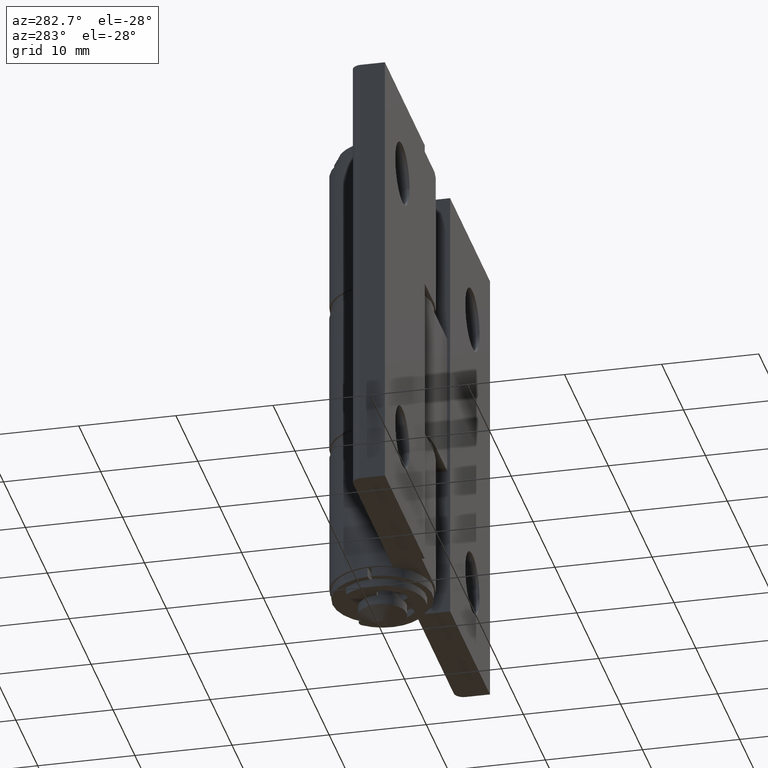
[diagram: clean part render]
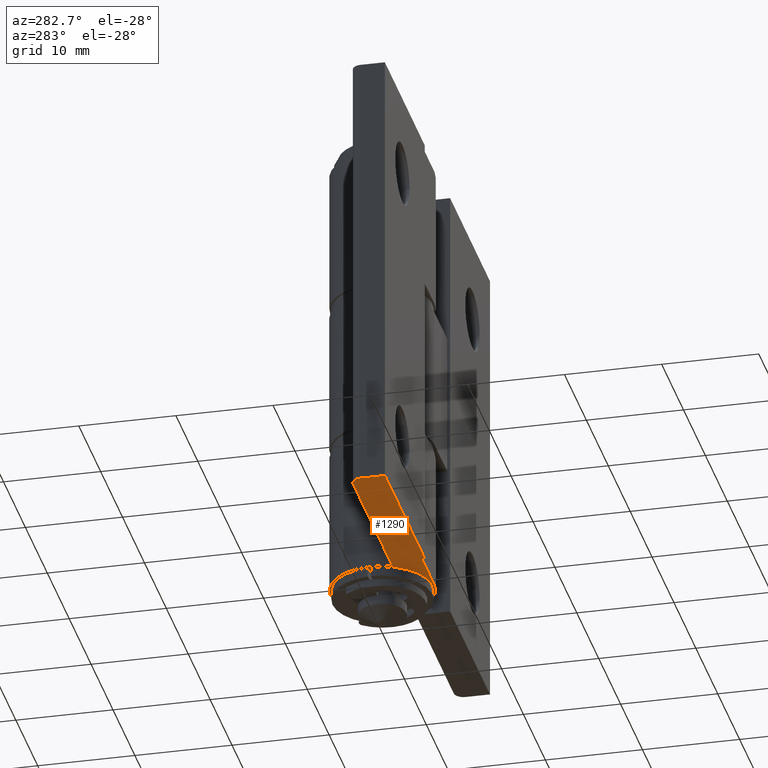
[diagram: same view with one face highlighted and labeled with its STEP entity id]
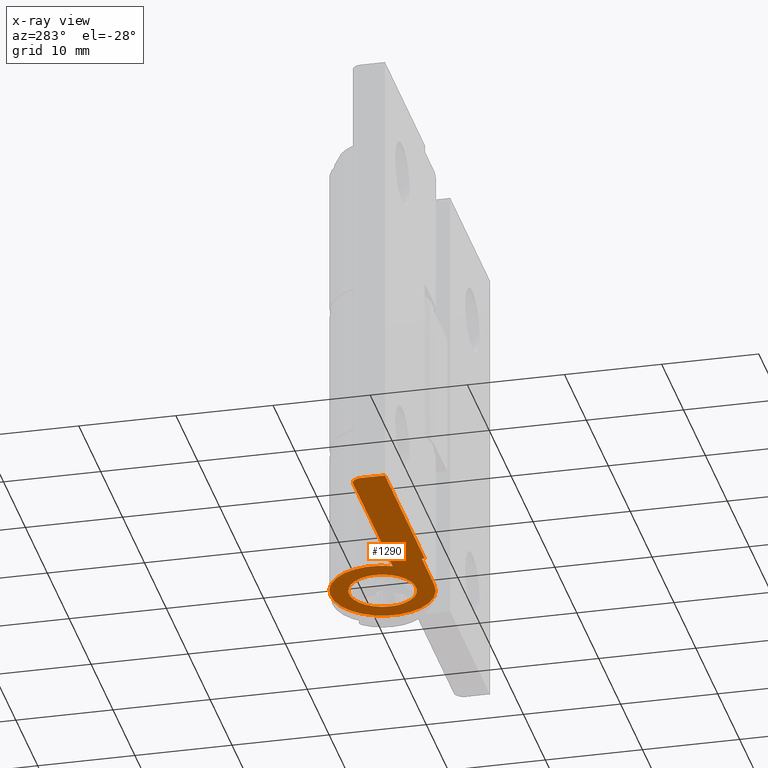
[diagram: x-ray of the same camera — body ghosted, the highlighted face saturated]
A machine part, auxiliary view. The second image highlights one B-rep face of the part: STEP entity #1290.
The next image is the same camera in x-ray: the body ghosted, the highlighted face saturated — about 0% of this face is hidden behind the body in this view.
In plain terms, the highlighted planar face has unit normal (0, 0, -1).
Its self-contained STEP definition (entity closure, byte-faithful):
#127=FACE_BOUND('',#266,.T.);
#172=FACE_OUTER_BOUND('',#265,.T.);
#265=EDGE_LOOP('',(#978,#979,#980,#981,#982,#983,#984));
#266=EDGE_LOOP('',(#985));
#360=CIRCLE('',#1369,5.35);
#362=CIRCLE('',#1374,1.);
#369=CIRCLE('',#1387,3.45);
#436=LINE('',#1988,#528);
#442=LINE('',#2005,#534);
#448=LINE('',#2042,#540);
#450=LINE('',#2046,#542);
#453=LINE('',#2050,#545);
#528=VECTOR('',#1552,18.1010205144336);
#534=VECTOR('',#1568,5.8);
#540=VECTOR('',#1610,2.5);
#542=VECTOR('',#1614,18.2);
#545=VECTOR('',#1619,0.3);
#622=VERTEX_POINT('',#1985);
#623=VERTEX_POINT('',#1987);
#628=VERTEX_POINT('',#1999);
#629=VERTEX_POINT('',#2003);
#631=VERTEX_POINT('',#2010);
#641=VERTEX_POINT('',#2038);
#642=VERTEX_POINT('',#2041);
#643=VERTEX_POINT('',#2045);
#746=EDGE_CURVE('',#623,#622,#436,.T.);
#753=EDGE_CURVE('',#622,#628,#360,.T.);
#755=EDGE_CURVE('',#628,#629,#442,.T.);
#757=EDGE_CURVE('',#623,#631,#362,.T.);
#769=EDGE_CURVE('',#641,#641,#369,.T.);
#770=EDGE_CURVE('',#642,#631,#448,.T.);
#772=EDGE_CURVE('',#643,#642,#450,.T.);
#775=EDGE_CURVE('',#629,#643,#453,.T.);
#978=ORIENTED_EDGE('',*,*,#757,.F.);
#979=ORIENTED_EDGE('',*,*,#746,.T.);
#980=ORIENTED_EDGE('',*,*,#753,.T.);
#981=ORIENTED_EDGE('',*,*,#755,.T.);
#982=ORIENTED_EDGE('',*,*,#775,.T.);
#983=ORIENTED_EDGE('',*,*,#772,.T.);
#984=ORIENTED_EDGE('',*,*,#770,.T.);
#985=ORIENTED_EDGE('',*,*,#769,.T.);
#1241=PLANE('',#1393);
#1290=ADVANCED_FACE('',(#172,#127),#1241,.T.);
#1369=AXIS2_PLACEMENT_3D('',#2001,#1563,#1564);
#1374=AXIS2_PLACEMENT_3D('',#2011,#1575,#1576);
#1387=AXIS2_PLACEMENT_3D('',#2039,#1606,#1607);
#1393=AXIS2_PLACEMENT_3D('',#2054,#1625,#1626);
#1552=DIRECTION('',(-1.,0.,0.));
#1563=DIRECTION('center_axis',(0.,0.,1.));
#1564=DIRECTION('ref_axis',(0.915697100105861,-0.401869158878504,0.));
#1568=DIRECTION('',(1.,0.,0.));
#1575=DIRECTION('center_axis',(0.,0.,-1.));
#1576=DIRECTION('ref_axis',(0.707106781186546,0.707106781186549,0.));
#1606=DIRECTION('center_axis',(0.,0.,-1.));
#1607=DIRECTION('ref_axis',(-1.,0.,0.));
#1610=DIRECTION('',(0.,1.,0.));
#1614=DIRECTION('',(1.,1.22002530178589E-16,0.));
#1619=DIRECTION('',(0.,-1.,0.));
#1625=DIRECTION('center_axis',(0.,0.,1.));
#1626=DIRECTION('ref_axis',(1.,0.,0.));
#1985=CARTESIAN_POINT('',(4.89897948556636,-2.15,23.5));
#1987=CARTESIAN_POINT('',(23.,-2.15,23.5));
#1988=CARTESIAN_POINT('',(24.,-2.15,23.5));
#1999=CARTESIAN_POINT('',(1.11022302462516E-15,-5.35,23.5));
#2001=CARTESIAN_POINT('Origin',(0.,0.,23.5));
#2003=CARTESIAN_POINT('',(5.8,-5.35,23.5));
#2005=CARTESIAN_POINT('',(1.11022302462516E-15,-5.35,23.5));
#2010=CARTESIAN_POINT('',(24.,-3.15,23.5));
#2011=CARTESIAN_POINT('Origin',(23.,-3.15,23.5));
#2038=CARTESIAN_POINT('',(3.45,5.55111512312578E-16,23.5));
#2039=CARTESIAN_POINT('Origin',(0.,0.,23.5));
#2041=CARTESIAN_POINT('',(24.,-5.65,23.5));
#2042=CARTESIAN_POINT('',(24.,-5.65,23.5));
#2045=CARTESIAN_POINT('',(5.8,-5.65,23.5));
#2046=CARTESIAN_POINT('',(5.8,-5.65,23.5));
#2050=CARTESIAN_POINT('',(5.8,-5.35,23.5));
#2054=CARTESIAN_POINT('Origin',(9.325,-0.15,23.5));